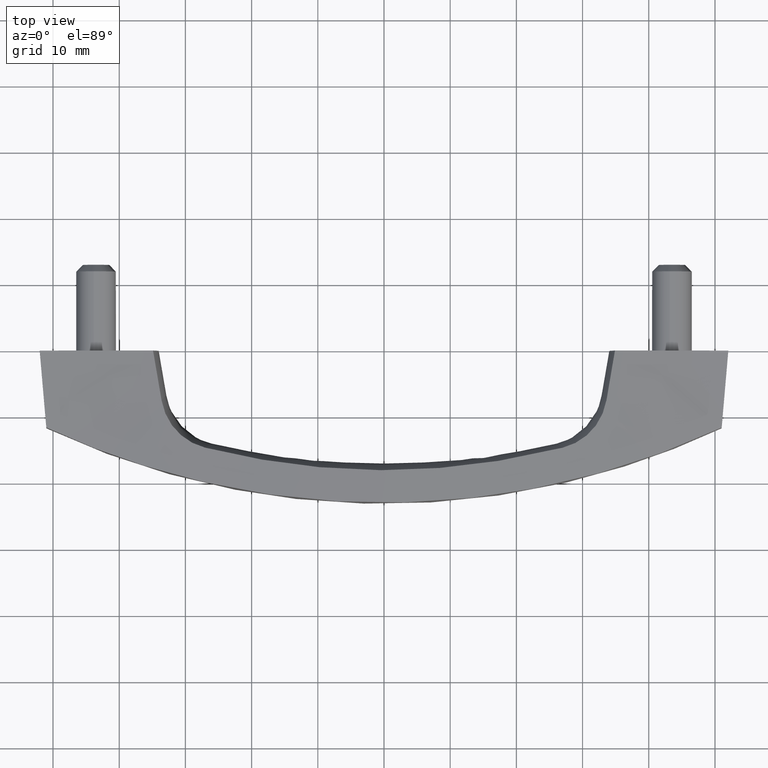
[diagram: clean part render]
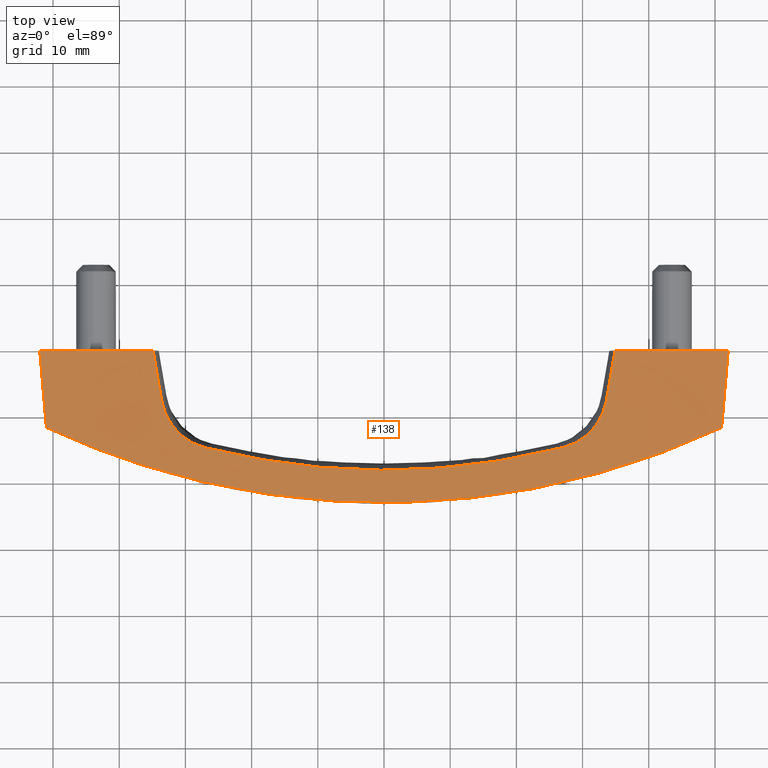
[diagram: same view with one face highlighted and labeled with its STEP entity id]
A machine part, top view. The second image highlights one B-rep face of the part: STEP entity #138.
In plain terms, the highlighted face is a freeform B-spline surface patch.
Its self-contained STEP definition (entity closure, byte-faithful):
#138=ADVANCED_FACE('',(#318),#317,.F.);
#317=( BOUNDED_SURFACE() B_SPLINE_SURFACE( 3,3,((#543,#544,#545,#546,#547,#548,#549,#550,#551,#552,#553,#554,#555),(#556,#557,#558,#559,#560,#561,#562,#563,#564,#565,#566,#567,#568),(#569,#570,#571,#572,#573,#574,#575,#576,#577,#578,#579,#580,#581),(#582,#583,#584,#585,#586,#587,#588,#589,#590,#591,#592,#593,#594)), .UNSPECIFIED.,.F.,.F.,.F.) B_SPLINE_SURFACE_WITH_KNOTS((4,4),(4,1,1,1,1,1,1,1,1,1,4),(0.00000000000E+00,2.39953319339E+01),(0.00000000000E+00,1.25628703422E+01,2.52519634805E+01,3.79410537596E+01,5.06301435874E+01,6.33192332367E+01,7.60083228860E+01,8.86974127137E+01,1.01386502614E+02,1.14075596526E+02,1.26638466869E+02), .UNSPECIFIED. ) GEOMETRIC_REPRESENTATION_ITEM() RATIONAL_B_SPLINE_SURFACE(((1.00000000000E+00,1.00000000000E+00,1.00000000000E+00,1.00000000000E+00,1.00000000000E+00,1.00000000000E+00,1.00000000000E+00,1.00000000000E+00,1.00000000000E+00,1.00000000000E+00,1.00000000000E+00,1.00000000000E+00,1.00000000000E+00),(1.00000000000E+00,1.00000000000E+00,1.00000000000E+00,1.00000000000E+00,1.00000000000E+00,1.00000000000E+00,1.00000000000E+00,1.00000000000E+00,1.00000000000E+00,1.00000000000E+00,1.00000000000E+00,1.00000000000E+00,1.00000000000E+00),(1.00000000000E+00,1.00000000000E+00,1.00000000000E+00,1.00000000000E+00,1.00000000000E+00,1.00000000000E+00,1.00000000000E+00,1.00000000000E+00,1.00000000000E+00,1.00000000000E+00,1.00000000000E+00,1.00000000000E+00,1.00000000000E+00),(1.00000000000E+00,1.00000000000E+00,1.00000000000E+00,1.00000000000E+00,1.00000000000E+00,1.00000000000E+00,1.00000000000E+00,1.00000000000E+00,1.00000000000E+00,1.00000000000E+00,1.00000000000E+00,1.00000000000E+00,1.00000000000E+00))) REPRESENTATION_ITEM('') SURFACE() );
#318=FACE_OUTER_BOUND('',#595,.T.);
#543=CARTESIAN_POINT('',(5.20005000000E+01,4.00000000000E+00,-1.33226800000E-12));
#544=CARTESIAN_POINT('',(4.78137540512E+01,4.08571984430E+00,-7.69734400000E-13));
#545=CARTESIAN_POINT('',(3.93981967048E+01,4.25802078499E+00,3.60983900000E-13));
#546=CARTESIAN_POINT('',(3.01532836675E+01,4.77696724897E+00,-9.71671000000E-14));
#547=CARTESIAN_POINT('',(1.99594477660E+01,4.62158574242E+00,2.61603700000E-14));
#548=CARTESIAN_POINT('',(1.00104569169E+01,4.93668978491E+00,-7.47439100000E-15));
#549=CARTESIAN_POINT('',(2.55012069087E-04,5.03165510749E+00,3.73719500000E-15));
#550=CARTESIAN_POINT('',(-1.00099469651E+01,4.93668978425E+00,-7.47439100000E-15));
#551=CARTESIAN_POINT('',(-1.99589374979E+01,4.62158574818E+00,2.61603700000E-14));
#552=CARTESIAN_POINT('',(-3.01527742982E+01,4.77696723686E+00,-9.71671000000E-14));
#553=CARTESIAN_POINT('',(-3.93976862290E+01,4.25802079788E+00,3.60983900000E-13));
#554=CARTESIAN_POINT('',(-4.78132439789E+01,4.08571984683E+00,-7.69734400000E-13));
#555=CARTESIAN_POINT('',(-5.19999900000E+01,4.00000000000E+00,-1.33226800000E-12));
#556=CARTESIAN_POINT('',(5.13155635707E+01,3.65753178534E+00,7.96170105433E+00));
#557=CARTESIAN_POINT('',(4.74180203723E+01,3.82436100290E+00,7.96170105433E+00));
#558=CARTESIAN_POINT('',(3.95837742303E+01,4.15969561948E+00,7.96170105433E+00));
#559=CARTESIAN_POINT('',(3.01033655615E+01,4.62692824062E+00,7.96170105433E+00));
#560=CARTESIAN_POINT('',(1.99727592591E+01,4.66198085463E+00,7.96170105433E+00));
#561=CARTESIAN_POINT('',(1.00071290437E+01,4.92514832459E+00,7.96170105433E+00));
#562=CARTESIAN_POINT('',(2.55012067391E-04,5.03742583771E+00,7.96170105433E+00));
#563=CARTESIAN_POINT('',(-1.00066190919E+01,4.92514832353E+00,7.96170105433E+00));
#564=CARTESIAN_POINT('',(-1.99722489909E+01,4.66198086152E+00,7.96170105433E+00));
#565=CARTESIAN_POINT('',(-3.01028561925E+01,4.62692822348E+00,7.96170105433E+00));
#566=CARTESIAN_POINT('',(-3.95832637677E+01,4.15969563747E+00,7.96170105433E+00));
#567=CARTESIAN_POINT('',(-4.74175102984E+01,3.82436100546E+00,7.96170105433E+00));
#568=CARTESIAN_POINT('',(-5.13150535707E+01,3.65753178534E+00,7.96170105433E+00));
#569=CARTESIAN_POINT('',(5.06306271414E+01,3.31506357069E+00,1.59234021087E+01));
#570=CARTESIAN_POINT('',(4.70222866933E+01,3.56300216151E+00,1.59234021087E+01));
#571=CARTESIAN_POINT('',(3.97693517558E+01,4.06137045397E+00,1.59234021087E+01));
#572=CARTESIAN_POINT('',(3.00534474556E+01,4.47688923227E+00,1.59234021087E+01));
#573=CARTESIAN_POINT('',(1.99860707523E+01,4.70237596685E+00,1.59234021087E+01));
#574=CARTESIAN_POINT('',(1.00038011705E+01,4.91360686428E+00,1.59234021087E+01));
#575=CARTESIAN_POINT('',(2.55012065695E-04,5.04319656792E+00,1.59234021087E+01));
#576=CARTESIAN_POINT('',(-1.00032912188E+01,4.91360686281E+00,1.59234021087E+01));
#577=CARTESIAN_POINT('',(-1.99855604839E+01,4.70237597486E+00,1.59234021087E+01));
#578=CARTESIAN_POINT('',(-3.00529380868E+01,4.47688921011E+00,1.59234021087E+01));
#579=CARTESIAN_POINT('',(-3.97688413063E+01,4.06137047705E+00,1.59234021087E+01));
#580=CARTESIAN_POINT('',(-4.70217766179E+01,3.56300216410E+00,1.59234021087E+01));
#581=CARTESIAN_POINT('',(-5.06301171414E+01,3.31506357069E+00,1.59234021087E+01));
#582=CARTESIAN_POINT('',(4.99456907121E+01,2.97259535603E+00,2.38851031630E+01));
#583=CARTESIAN_POINT('',(4.66265530143E+01,3.30164332011E+00,2.38851031630E+01));
#584=CARTESIAN_POINT('',(3.99549292812E+01,3.96304528845E+00,2.38851031630E+01));
#585=CARTESIAN_POINT('',(3.00035293496E+01,4.32685022392E+00,2.38851031630E+01));
#586=CARTESIAN_POINT('',(1.99993822454E+01,4.74277107906E+00,2.38851031630E+01));
#587=CARTESIAN_POINT('',(1.00004732973E+01,4.90206540397E+00,2.38851031630E+01));
#588=CARTESIAN_POINT('',(2.55012063999E-04,5.04896729814E+00,2.38851031630E+01));
#589=CARTESIAN_POINT('',(-9.99996334557E+00,4.90206540208E+00,2.38851031630E+01));
#590=CARTESIAN_POINT('',(-1.99988719769E+01,4.74277108819E+00,2.38851031630E+01));
#591=CARTESIAN_POINT('',(-3.00030199812E+01,4.32685019673E+00,2.38851031630E+01));
#592=CARTESIAN_POINT('',(-3.99544188449E+01,3.96304531663E+00,2.38851031630E+01));
#593=CARTESIAN_POINT('',(-4.66260429373E+01,3.30164332274E+00,2.38851031630E+01));
#594=CARTESIAN_POINT('',(-4.99451807121E+01,2.97259535603E+00,2.38851031630E+01));
#595=EDGE_LOOP('',(#756,#757,#758,#759,#760,#761,#762,#763,#764,#765));
#756=ORIENTED_EDGE('',*,*,#840,.F.);
#757=ORIENTED_EDGE('',*,*,#857,.F.);
#758=ORIENTED_EDGE('',*,*,#828,.T.);
#759=ORIENTED_EDGE('',*,*,#843,.F.);
#760=ORIENTED_EDGE('',*,*,#851,.T.);
#761=ORIENTED_EDGE('',*,*,#856,.T.);
#762=ORIENTED_EDGE('',*,*,#854,.T.);
#763=ORIENTED_EDGE('',*,*,#846,.F.);
#764=ORIENTED_EDGE('',*,*,#820,.T.);
#765=ORIENTED_EDGE('',*,*,#826,.T.);
#820=EDGE_CURVE('',#979,#993,#1000,.T.);
#826=EDGE_CURVE('',#993,#1034,#1041,.T.);
#828=EDGE_CURVE('',#1055,#1047,#1056,.T.);
#840=EDGE_CURVE('',#1138,#1034,#1139,.T.);
#843=EDGE_CURVE('',#1158,#1047,#1159,.T.);
#846=EDGE_CURVE('',#979,#1178,#1179,.T.);
#851=EDGE_CURVE('',#1158,#1205,#1212,.T.);
#854=EDGE_CURVE('',#1218,#1178,#1232,.T.);
#856=EDGE_CURVE('',#1205,#1218,#1244,.T.);
#857=EDGE_CURVE('',#1055,#1138,#1250,.T.);
#979=VERTEX_POINT('',#1360);
#993=VERTEX_POINT('',#1370);
#1000=(BOUNDED_CURVE() B_SPLINE_CURVE(3,(#1374,#1375,#1376,#1377,#1378),.UNSPECIFIED.,.F.,.F.) B_SPLINE_CURVE_WITH_KNOTS((4,1,4),(8.51182230981E-01,9.00797359185E-01,1.00000000000E+00),.UNSPECIFIED.) CURVE() GEOMETRIC_REPRESENTATION_ITEM() RATIONAL_B_SPLINE_CURVE((1.00000000000E+00,1.00000000000E+00,1.00000000000E+00,1.00000000000E+00,1.00000000000E+00)) REPRESENTATION_ITEM('') );
#1034=VERTEX_POINT('',#1398);
#1041=LINE('',#1402,#1403);
#1047=VERTEX_POINT('',#1405);
#1055=VERTEX_POINT('',#1410);
#1056=(BOUNDED_CURVE() B_SPLINE_CURVE(3,(#1411,#1412,#1413,#1414,#1415),.UNSPECIFIED.,.F.,.F.) B_SPLINE_CURVE_WITH_KNOTS((4,1,4),(0.00000000000E+00,9.92026408153E-02,1.48817765787E-01),.UNSPECIFIED.) CURVE() GEOMETRIC_REPRESENTATION_ITEM() RATIONAL_B_SPLINE_CURVE((1.00000000000E+00,1.00000000000E+00,1.00000000000E+00,1.00000000000E+00,1.00000000000E+00)) REPRESENTATION_ITEM('') );
#1138=VERTEX_POINT('',#1470);
#1139=(BOUNDED_CURVE() B_SPLINE_CURVE(3,(#1471,#1472,#1473,#1474,#1475,#1476,#1477,#1478,#1479,#1480,#1481,#1482,#1483,#1484,#1485,#1486,#1487,#1488,#1489,#1490,#1491,#1492,#1493,#1494,#1495,#1496,#1497,#1498,#1499,#1500,#1501,#1502,#1503,#1504,#1505,#1506,#1507,#1508,#1509,#1510,#1511,#1512,#1513,#1514,#1515,#1516,#1517,#1518,#1519,#1520,#1521,#1522,#1523,#1524,#1525,#1526,#1527,#1528,#1529,#1530,#1531,#1532,#1533,#1534,#1535,#1536),.UNSPECIFIED.,.F.,.F.) B_SPLINE_CURVE_WITH_KNOTS((4,2,2,2,2,2,2,2,2,2,2,2,2,2,2,2,2,2,2,2,2,2,2,2,2,2,2,2,2,2,2,2,4),(0.00000000000E+00,3.12500000000E-02,6.25000000000E-02,9.37500000000E-02,1.25000000000E-01,1.56250000000E-01,1.87500000000E-01,2.18750000000E-01,2.50000000000E-01,2.81250000000E-01,3.12500000000E-01,3.43750000000E-01,3.75000000000E-01,3.90625000000E-01,4.06250000000E-01,4.37500000000E-01,5.00000000000E-01,5.62500000000E-01,5.93750000000E-01,6.25000000000E-01,6.56250000000E-01,6.87500000000E-01,7.18750000000E-01,7.50000000000E-01,7.65625000000E-01,7.81250000000E-01,8.12500000000E-01,8.43750000000E-01,8.75000000000E-01,9.06250000000E-01,9.37500000000E-01,9.68750000000E-01,1.00000000000E+00),.UNSPECIFIED.) CURVE() GEOMETRIC_REPRESENTATION_ITEM() RATIONAL_B_SPLINE_CURVE((1.00000000000E+00,1.00000000000E+00,1.00000000000E+00,1.00000000000E+00,1.00000000000E+00,1.00000000000E+00,1.00000000000E+00,1.00000000000E+00,1.00000000000E+00,1.00000000000E+00,1.00000000000E+00,1.00000000000E+00,1.00000000000E+00,1.00000000000E+00,1.00000000000E+00,1.00000000000E+00,1.00000000000E+00,1.00000000000E+00,1.00000000000E+00,1.00000000000E+00,1.00000000000E+00,1.00000000000E+00,1.00000000000E+00,1.00000000000E+00,1.00000000000E+00,1.00000000000E+00,1.00000000000E+00,1.00000000000E+00,1.00000000000E+00,1.00000000000E+00,1.00000000000E+00,1.00000000000E+00,1.00000000000E+00,1.00000000000E+00,1.00000000000E+00,1.00000000000E+00,1.00000000000E+00,1.00000000000E+00,1.00000000000E+00,1.00000000000E+00,1.00000000000E+00,1.00000000000E+00,1.00000000000E+00,1.00000000000E+00,1.00000000000E+00,1.00000000000E+00,1.00000000000E+00,1.00000000000E+00,1.00000000000E+00,1.00000000000E+00,1.00000000000E+00,1.00000000000E+00,1.00000000000E+00,1.00000000000E+00,1.00000000000E+00,1.00000000000E+00,1.00000000000E+00,1.00000000000E+00,1.00000000000E+00,1.00000000000E+00,1.00000000000E+00,1.00000000000E+00,1.00000000000E+00,1.00000000000E+00,1.00000000000E+00,1.00000000000E+00)) REPRESENTATION_ITEM('') );
#1158=VERTEX_POINT('',#1607);
#1159=(BOUNDED_CURVE() B_SPLINE_CURVE(3,(#1608,#1609,#1610,#1611),.UNSPECIFIED.,.F.,.F.) B_SPLINE_CURVE_WITH_KNOTS((4,4),(3.12919295445E-04,7.93070046308E-03),.UNSPECIFIED.) CURVE() GEOMETRIC_REPRESENTATION_ITEM() RATIONAL_B_SPLINE_CURVE((1.00000000000E+00,1.00000000000E+00,1.00000000000E+00,1.00000000000E+00)) REPRESENTATION_ITEM('') );
#1178=VERTEX_POINT('',#1627);
#1179=(BOUNDED_CURVE() B_SPLINE_CURVE(3,(#1628,#1629,#1630,#1631),.UNSPECIFIED.,.F.,.F.) B_SPLINE_CURVE_WITH_KNOTS((4,4),(0.00000000000E+00,7.61717862308E-03),.UNSPECIFIED.) CURVE() GEOMETRIC_REPRESENTATION_ITEM() RATIONAL_B_SPLINE_CURVE((1.00000000000E+00,1.00000000000E+00,1.00000000000E+00,1.00000000000E+00)) REPRESENTATION_ITEM('') );
#1205=VERTEX_POINT('',#1678);
#1212=(BOUNDED_CURVE() B_SPLINE_CURVE(3,(#1699,#1700,#1701,#1702,#1703,#1704,#1705,#1706,#1707,#1708,#1709,#1710,#1711,#1712,#1713,#1714,#1715,#1716,#1717,#1718,#1719,#1720,#1721,#1722,#1723,#1724,#1725,#1726),.UNSPECIFIED.,.F.,.F.) B_SPLINE_CURVE_WITH_KNOTS((4,2,2,2,2,2,2,2,2,2,2,2,2,4),(1.92430852220E-05,1.25000000000E-01,2.50000000000E-01,2.81250000000E-01,3.12500000000E-01,3.75000000000E-01,5.00000000000E-01,5.62500000000E-01,5.93750000000E-01,6.25000000000E-01,7.50000000000E-01,8.75000000000E-01,9.37500000000E-01,9.99986105413E-01),.UNSPECIFIED.) CURVE() GEOMETRIC_REPRESENTATION_ITEM() RATIONAL_B_SPLINE_CURVE((1.00000000000E+00,1.00000000000E+00,1.00000000000E+00,1.00000000000E+00,1.00000000000E+00,1.00000000000E+00,1.00000000000E+00,1.00000000000E+00,1.00000000000E+00,1.00000000000E+00,1.00000000000E+00,1.00000000000E+00,1.00000000000E+00,1.00000000000E+00,1.00000000000E+00,1.00000000000E+00,1.00000000000E+00,1.00000000000E+00,1.00000000000E+00,1.00000000000E+00,1.00000000000E+00,1.00000000000E+00,1.00000000000E+00,1.00000000000E+00,1.00000000000E+00,1.00000000000E+00,1.00000000000E+00,1.00000000000E+00)) REPRESENTATION_ITEM('') );
#1218=VERTEX_POINT('',#1727);
#1232=(BOUNDED_CURVE() B_SPLINE_CURVE(3,(#1777,#1778,#1779,#1780,#1781,#1782,#1783,#1784,#1785,#1786,#1787,#1788,#1789,#1790,#1791,#1792,#1793,#1794,#1795,#1796,#1797,#1798,#1799,#1800,#1801,#1802,#1803,#1804,#1805,#1806),.UNSPECIFIED.,.F.,.F.) B_SPLINE_CURVE_WITH_KNOTS((4,2,2,2,2,2,2,2,2,2,2,2,2,2,4),(1.26367478140E-05,1.25000000000E-01,2.50000000000E-01,2.81250000000E-01,3.12500000000E-01,3.75000000000E-01,5.00000000000E-01,5.62500000000E-01,5.93750000000E-01,6.25000000000E-01,7.50000000000E-01,8.12500000000E-01,8.43750000000E-01,8.75000000000E-01,9.99983140215E-01),.UNSPECIFIED.) CURVE() GEOMETRIC_REPRESENTATION_ITEM() RATIONAL_B_SPLINE_CURVE((1.00000000000E+00,1.00000000000E+00,1.00000000000E+00,1.00000000000E+00,1.00000000000E+00,1.00000000000E+00,1.00000000000E+00,1.00000000000E+00,1.00000000000E+00,1.00000000000E+00,1.00000000000E+00,1.00000000000E+00,1.00000000000E+00,1.00000000000E+00,1.00000000000E+00,1.00000000000E+00,1.00000000000E+00,1.00000000000E+00,1.00000000000E+00,1.00000000000E+00,1.00000000000E+00,1.00000000000E+00,1.00000000000E+00,1.00000000000E+00,1.00000000000E+00,1.00000000000E+00,1.00000000000E+00,1.00000000000E+00,1.00000000000E+00,1.00000000000E+00)) REPRESENTATION_ITEM('') );
#1244=(BOUNDED_CURVE() B_SPLINE_CURVE(3,(#1842,#1843,#1844,#1845,#1846,#1847,#1848,#1849,#1850,#1851,#1852,#1853,#1854,#1855,#1856,#1857,#1858,#1859,#1860,#1861,#1862,#1863,#1864,#1865,#1866,#1867,#1868,#1869,#1870,#1871,#1872,#1873,#1874,#1875,#1876),.UNSPECIFIED.,.F.,.F.) B_SPLINE_CURVE_WITH_KNOTS((4,2,2,2,2,2,2,1,2,2,2,2,2,2,2,2,2,4),(7.89933092900E-06,6.25000000000E-02,1.25000000000E-01,1.87500000000E-01,2.50000000000E-01,3.12500000000E-01,3.75000000000E-01,4.06250000000E-01,4.21875000000E-01,4.37500000000E-01,5.00000000000E-01,6.25000000000E-01,6.87500000000E-01,7.50000000000E-01,8.12500000000E-01,8.75000000000E-01,9.37500000000E-01,9.99992811110E-01),.UNSPECIFIED.) CURVE() GEOMETRIC_REPRESENTATION_ITEM() RATIONAL_B_SPLINE_CURVE((1.00000000000E+00,1.00000000000E+00,1.00000000000E+00,1.00000000000E+00,1.00000000000E+00,1.00000000000E+00,1.00000000000E+00,1.00000000000E+00,1.00000000000E+00,1.00000000000E+00,1.00000000000E+00,1.00000000000E+00,1.00000000000E+00,1.00000000000E+00,1.00000000000E+00,1.00000000000E+00,1.00000000000E+00,1.00000000000E+00,1.00000000000E+00,1.00000000000E+00,1.00000000000E+00,1.00000000000E+00,1.00000000000E+00,1.00000000000E+00,1.00000000000E+00,1.00000000000E+00,1.00000000000E+00,1.00000000000E+00,1.00000000000E+00,1.00000000000E+00,1.00000000000E+00,1.00000000000E+00,1.00000000000E+00,1.00000000000E+00,1.00000000000E+00)) REPRESENTATION_ITEM('') );
#1250=LINE('',#1877,#1878);
#1360=CARTESIAN_POINT('',(-3.48903901517E+01,4.50605642015E+00,5.73941500000E-11));
#1370=CARTESIAN_POINT('',(-5.19999900000E+01,4.00000000000E+00,-8.88178400000E-13));
#1374=CARTESIAN_POINT('',(-3.48903901517E+01,4.50605642015E+00,5.73941500000E-11));
#1375=CARTESIAN_POINT('',(-3.65120586636E+01,4.43931217298E+00,1.18376400000E-13));
#1376=CARTESIAN_POINT('',(-4.15325422034E+01,4.21431154822E+00,7.41436800000E-14));
#1377=CARTESIAN_POINT('',(-4.78132439789E+01,4.08571984683E+00,-7.69734400000E-13));
#1378=CARTESIAN_POINT('',(-5.19999900000E+01,4.00000000000E+00,-8.88178400000E-13));
#1398=CARTESIAN_POINT('',(-5.10000252651E+01,3.50001763252E+00,1.16235900791E+01));
#1402=CARTESIAN_POINT('',(-5.19999900000E+01,4.00000000000E+00,-8.88178400000E-13));
#1403=VECTOR('',#1404,1.16772324703E+01);
#1404=DIRECTION('',(8.56337096551E-02,-4.28168548282E-02,9.95406241046E-01));
#1405=CARTESIAN_POINT('',(3.48909001505E+01,4.50605641706E+00,1.00049200000E-13));
#1410=CARTESIAN_POINT('',(5.20005000000E+01,4.00000000000E+00,-8.88178400000E-13));
#1411=CARTESIAN_POINT('',(5.20005000000E+01,4.00000000000E+00,-8.88178400000E-13));
#1412=CARTESIAN_POINT('',(4.78137540512E+01,4.08571984430E+00,-7.69734400000E-13));
#1413=CARTESIAN_POINT('',(4.15330525206E+01,4.21431153911E+00,7.41436700000E-14));
#1414=CARTESIAN_POINT('',(3.65125686827E+01,4.43931217016E+00,1.18376400000E-13));
#1415=CARTESIAN_POINT('',(3.48909001505E+01,4.50605641706E+00,1.00049200000E-13));
#1470=CARTESIAN_POINT('',(5.10005567320E+01,3.50002836602E+00,1.16233405467E+01));
#1471=CARTESIAN_POINT('',(5.10005567320E+01,3.50002836602E+00,1.16233405467E+01));
#1472=CARTESIAN_POINT('',(4.99990027260E+01,3.53191644947E+00,1.20935893878E+01));
#1473=CARTESIAN_POINT('',(4.89934658437E+01,3.56917836643E+00,1.25488062897E+01));
#1474=CARTESIAN_POINT('',(4.69744928799E+01,3.65293437837E+00,1.34296082497E+01));
#1475=CARTESIAN_POINT('',(4.59610572541E+01,3.69944199791E+00,1.38551932338E+01));
#1476=CARTESIAN_POINT('',(4.39262770585E+01,3.79847733191E+00,1.46771037058E+01));
#1477=CARTESIAN_POINT('',(4.29049330410E+01,3.85102068843E+00,1.50734291993E+01));
#1478=CARTESIAN_POINT('',(4.08542340362E+01,3.95675366119E+00,1.58371347740E+01));
#1479=CARTESIAN_POINT('',(3.98248733576E+01,4.00976409612E+00,1.62045170789E+01));
#1480=CARTESIAN_POINT('',(3.77579620699E+01,4.10943189535E+00,1.69105793602E+01));
#1481=CARTESIAN_POINT('',(3.67204138399E+01,4.15617011627E+00,1.72492576519E+01));
#1482=CARTESIAN_POINT('',(3.46371024728E+01,4.24178966088E+00,1.78980126803E+01));
#1483=CARTESIAN_POINT('',(3.35913397397E+01,4.28068863067E+00,1.82080886338E+01));
#1484=CARTESIAN_POINT('',(3.14916798309E+01,4.35291588182E+00,1.87996388891E+01));
#1485=CARTESIAN_POINT('',(3.04377858166E+01,4.38634429937E+00,1.90811118784E+01));
#1486=CARTESIAN_POINT('',(2.83220212118E+01,4.45271407633E+00,1.96153801273E+01));
#1487=CARTESIAN_POINT('',(2.72601484531E+01,4.48558384455E+00,1.98681766565E+01));
#1488=CARTESIAN_POINT('',(2.51284134012E+01,4.55117308182E+00,2.03450025783E+01));
#1489=CARTESIAN_POINT('',(2.40585506426E+01,4.58387546456E+00,2.05690324615E+01));
#1490=CARTESIAN_POINT('',(2.19107366775E+01,4.64744466157E+00,2.09881824868E+01));
#1491=CARTESIAN_POINT('',(2.08327847052E+01,4.67828594326E+00,2.11833031089E+01));
#1492=CARTESIAN_POINT('',(1.86686189780E+01,4.73485186311E+00,2.15444262994E+01));
#1493=CARTESIAN_POINT('',(1.75824049788E+01,4.76057277979E+00,2.17104284596E+01));
#1494=CARTESIAN_POINT('',(1.54016410278E+01,4.80719564424E+00,2.20130097326E+01));
#1495=CARTESIAN_POINT('',(1.43070914533E+01,4.82810919888E+00,2.21495887323E+01));
#1496=CARTESIAN_POINT('',(1.26589770653E+01,4.85703079192E+00,2.23321049657E+01));
#1497=CARTESIAN_POINT('',(1.21081627833E+01,4.86627787438E+00,2.23892524576E+01));
#1498=CARTESIAN_POINT('',(1.10075060800E+01,4.88420114409E+00,2.24957576798E+01));
#1499=CARTESIAN_POINT('',(1.04574356014E+01,4.89288345360E+00,2.25451464881E+01));
#1500=CARTESIAN_POINT('',(8.80798813229E+00,4.91856349385E+00,2.26817971932E+01));
#1501=CARTESIAN_POINT('',(7.70937550200E+00,4.93514020660E+00,2.27575455157E+01));
#1502=CARTESIAN_POINT('',(4.41660481639E+00,4.97878234506E+00,2.29392473044E+01));
#1503=CARTESIAN_POINT('',(2.22551180931E+00,4.99975538627E+00,2.29996909166E+01));
#1504=CARTESIAN_POINT('',(-2.14837562156E+00,5.00024036304E+00,2.30010966875E+01));
#1505=CARTESIAN_POINT('',(-4.33116922158E+00,4.97965187488E+00,2.29420613971E+01));
#1506=CARTESIAN_POINT('',(-7.59936365699E+00,4.93671086174E+00,2.27645013133E+01));
#1507=CARTESIAN_POINT('',(-8.68776181648E+00,4.92037985997E+00,2.26904712650E+01));
#1508=CARTESIAN_POINT('',(-1.08625867703E+01,4.88660989978E+00,2.25127197560E+01));
#1509=CARTESIAN_POINT('',(-1.19490147868E+01,4.86929678193E+00,2.24089979754E+01));
#1510=CARTESIAN_POINT('',(-1.41198749924E+01,4.83154204524E+00,2.21717948691E+01));
#1511=CARTESIAN_POINT('',(-1.52043069387E+01,4.81107521936E+00,2.20383136378E+01));
#1512=CARTESIAN_POINT('',(-1.73711497892E+01,4.76535030234E+00,2.17414585590E+01));
#1513=CARTESIAN_POINT('',(-1.84535605687E+01,4.74007870947E+00,2.15780848447E+01));
#1514=CARTESIAN_POINT('',(-2.06163427790E+01,4.68424190892E+00,2.12212427107E+01));
#1515=CARTESIAN_POINT('',(-2.16967134742E+01,4.65359970753E+00,2.10277746720E+01));
#1516=CARTESIAN_POINT('',(-2.38554265403E+01,4.59000738034E+00,2.06104640768E+01));
#1517=CARTESIAN_POINT('',(-2.49337694029E+01,4.55710722610E+00,2.03866214891E+01));
#1518=CARTESIAN_POINT('',(-2.65497588256E+01,4.50743901572E+00,2.00278103334E+01));
#1519=CARTESIAN_POINT('',(-2.70881676456E+01,4.49081604996E+00,1.99043648207E+01));
#1520=CARTESIAN_POINT('',(-2.81644735397E+01,4.45746557062E+00,1.96497388212E+01));
#1521=CARTESIAN_POINT('',(-2.87018916843E+01,4.44075347012E+00,1.95186678536E+01));
#1522=CARTESIAN_POINT('',(-3.03096344803E+01,4.39039057112E+00,1.91147719663E+01));
#1523=CARTESIAN_POINT('',(-3.13763943509E+01,4.35667160309E+00,1.88310426814E+01));
#1524=CARTESIAN_POINT('',(-3.34996547581E+01,4.28399551326E+00,1.82348958662E+01));
#1525=CARTESIAN_POINT('',(-3.45561504674E+01,4.24490795532E+00,1.79224801160E+01));
#1526=CARTESIAN_POINT('',(-3.66588306893E+01,4.15885078737E+00,1.72691278559E+01));
#1527=CARTESIAN_POINT('',(-3.77050148011E+01,4.11186444993E+00,1.69281921977E+01));
#1528=CARTESIAN_POINT('',(-3.97871590761E+01,4.01164422825E+00,1.62178542588E+01));
#1529=CARTESIAN_POINT('',(-4.08231164696E+01,3.95832816022E+00,1.58484538765E+01));
#1530=CARTESIAN_POINT('',(-4.28850502605E+01,3.85201484689E+00,1.50810966706E+01));
#1531=CARTESIAN_POINT('',(-4.39110336673E+01,3.79920902241E+00,1.46831370198E+01));
#1532=CARTESIAN_POINT('',(-4.59532036171E+01,3.69977287070E+00,1.38584881276E+01));
#1533=CARTESIAN_POINT('',(-4.69693894125E+01,3.65312529328E+00,1.34317988098E+01));
#1534=CARTESIAN_POINT('',(-4.89920212123E+01,3.56919965445E+00,1.25494723028E+01));
#1535=CARTESIAN_POINT('',(-4.99984666073E+01,3.53190692334E+00,1.20938351236E+01));
#1536=CARTESIAN_POINT('',(-5.10000252651E+01,3.50001763252E+00,1.16235900791E+01));
#1607=CARTESIAN_POINT('',(3.36079919887E+01,4.44234619461E+00,7.50870683689E+00));
#1608=CARTESIAN_POINT('',(3.36079919887E+01,4.44234619461E+00,7.50870683689E+00));
#1609=CARTESIAN_POINT('',(3.40356480483E+01,4.46381134457E+00,5.00580992580E+00));
#1610=CARTESIAN_POINT('',(3.44632329508E+01,4.48491619597E+00,2.50289777037E+00));
#1611=CARTESIAN_POINT('',(3.48909001505E+01,4.50605641706E+00,1.00049200000E-13));
#1627=CARTESIAN_POINT('',(-3.36073313691E+01,4.44236175174E+00,7.50806990442E+00));
#1628=CARTESIAN_POINT('',(-3.48903901517E+01,4.50605642015E+00,5.73941500000E-11));
#1629=CARTESIAN_POINT('',(-3.44626727461E+01,4.48492135829E+00,2.50268545954E+00));
#1630=CARTESIAN_POINT('',(-3.40350376302E+01,4.46382167452E+00,5.00538530287E+00));
#1631=CARTESIAN_POINT('',(-3.36073313691E+01,4.44236175174E+00,7.50806990442E+00));
#1678=CARTESIAN_POINT('',(2.70095754065E+01,4.54628775697E+00,1.46761128301E+01));
#1699=CARTESIAN_POINT('',(3.36079919887E+01,4.44234619461E+00,7.50870683689E+00));
#1700=CARTESIAN_POINT('',(3.35348692305E+01,4.43868899322E+00,7.93582137752E+00));
#1701=CARTESIAN_POINT('',(3.34331150637E+01,4.43630276945E+00,8.35298417937E+00));
#1702=CARTESIAN_POINT('',(3.31734746612E+01,4.43390456890E+00,9.16786877809E+00));
#1703=CARTESIAN_POINT('',(3.30155823151E+01,4.43389322095E+00,9.56558845175E+00));
#1704=CARTESIAN_POINT('',(3.27816833203E+01,4.43530145786E+00,1.00500392721E+01));
#1705=CARTESIAN_POINT('',(3.27330679955E+01,4.43565438892E+00,1.01462914219E+01));
#1706=CARTESIAN_POINT('',(3.26320928280E+01,4.43650194326E+00,1.03374941490E+01));
#1707=CARTESIAN_POINT('',(3.25796591584E+01,4.43699752290E+00,1.04325581896E+01));
#1708=CARTESIAN_POINT('',(3.24179618443E+01,4.43868071794E+00,1.07134849552E+01));
#1709=CARTESIAN_POINT('',(3.23039573937E+01,4.44006691913E+00,1.08957933304E+01));
#1710=CARTESIAN_POINT('',(3.19436328236E+01,4.44495715054E+00,1.14280372103E+01));
#1711=CARTESIAN_POINT('',(3.16790822541E+01,4.44918927959E+00,1.17633562302E+01));
#1712=CARTESIAN_POINT('',(3.12454531306E+01,4.45681876780E+00,1.22368296884E+01));
#1713=CARTESIAN_POINT('',(3.10947559879E+01,4.45957636493E+00,1.23897204473E+01));
#1714=CARTESIAN_POINT('',(3.08592512129E+01,4.46402055079E+00,1.26114735580E+01));
#1715=CARTESIAN_POINT('',(3.07791049523E+01,4.46555459897E+00,1.26841845047E+01));
#1716=CARTESIAN_POINT('',(3.06158841168E+01,4.46871833577E+00,1.28267855631E+01));
#1717=CARTESIAN_POINT('',(3.05331989887E+01,4.47034043323E+00,1.28963399991E+01));
#1718=CARTESIAN_POINT('',(3.01144945063E+01,4.47864076182E+00,1.32355358536E+01));
#1719=CARTESIAN_POINT('',(2.97627098985E+01,4.48587285153E+00,1.34795645338E+01));
#1720=CARTESIAN_POINT('',(2.90267121357E+01,4.50141219357E+00,1.39149396135E+01));
#1721=CARTESIAN_POINT('',(2.86425032025E+01,4.50973147823E+00,1.41062924575E+01));
#1722=CARTESIAN_POINT('',(2.80413805596E+01,4.52302040465E+00,1.43530179241E+01));
#1723=CARTESIAN_POINT('',(2.78381933183E+01,4.52755543948E+00,1.44279532690E+01));
#1724=CARTESIAN_POINT('',(2.74274428463E+01,4.53679391707E+00,1.45630111874E+01));
#1725=CARTESIAN_POINT('',(2.72197004320E+01,4.54150130898E+00,1.46232111167E+01));
#1726=CARTESIAN_POINT('',(2.70095754065E+01,4.54628775697E+00,1.46761128301E+01));
#1727=CARTESIAN_POINT('',(-2.70083607157E+01,4.54630653269E+00,1.46760137016E+01));
#1777=CARTESIAN_POINT('',(-2.70083607157E+01,4.54630653269E+00,1.46760137016E+01));
#1778=CARTESIAN_POINT('',(-2.74285275270E+01,4.53673603411E+00,1.45702253831E+01));
#1779=CARTESIAN_POINT('',(-2.78363089866E+01,4.52754918944E+00,1.44361049610E+01));
#1780=CARTESIAN_POINT('',(-2.86276289216E+01,4.51005140466E+00,1.41122929757E+01));
#1781=CARTESIAN_POINT('',(-2.90111654068E+01,4.50173970450E+00,1.39225969010E+01));
#1782=CARTESIAN_POINT('',(-2.94747836395E+01,4.49194602072E+00,1.36493227621E+01));
#1783=CARTESIAN_POINT('',(-2.95667134210E+01,4.49001704847E+00,1.35928516693E+01));
#1784=CARTESIAN_POINT('',(-2.97489540268E+01,4.48621983438E+00,1.34762055093E+01));
#1785=CARTESIAN_POINT('',(-2.98392243819E+01,4.48435250672E+00,1.34160434852E+01));
#1786=CARTESIAN_POINT('',(-3.01053239271E+01,4.47888876636E+00,1.32315043822E+01));
#1787=CARTESIAN_POINT('',(-3.02772189137E+01,4.47541305016E+00,1.31025954377E+01));
#1788=CARTESIAN_POINT('',(-3.07767105267E+01,4.46550756899E+00,1.26985621764E+01));
#1789=CARTESIAN_POINT('',(-3.10881834692E+01,4.45959603380E+00,1.24062059067E+01));
#1790=CARTESIAN_POINT('',(-3.15230799628E+01,4.45192839271E+00,1.19331343106E+01));
#1791=CARTESIAN_POINT('',(-3.16626426110E+01,4.44957345308E+00,1.17696690148E+01));
#1792=CARTESIAN_POINT('',(-3.18637143341E+01,4.44637232782E+00,1.15156289146E+01));
#1793=CARTESIAN_POINT('',(-3.19294882518E+01,4.44535870931E+00,1.14292906375E+01));
#1794=CARTESIAN_POINT('',(-3.20573711310E+01,4.44346045069E+00,1.12548180667E+01));
#1795=CARTESIAN_POINT('',(-3.21195217460E+01,4.44257498237E+00,1.11666470874E+01));
#1796=CARTESIAN_POINT('',(-3.24214859316E+01,4.43847020008E+00,1.07212049204E+01));
#1797=CARTESIAN_POINT('',(-3.26350616714E+01,4.43621527219E+00,1.03502391618E+01));
#1798=CARTESIAN_POINT('',(-3.29149964388E+01,4.43449961214E+00,9.77268835874E+00));
#1799=CARTESIAN_POINT('',(-3.30015444628E+01,4.43420615852E+00,9.57664112788E+00));
#1800=CARTESIAN_POINT('',(-3.31211905417E+01,4.43420478813E+00,9.27725877866E+00));
#1801=CARTESIAN_POINT('',(-3.31593750128E+01,4.43427750607E+00,9.17657859638E+00));
#1802=CARTESIAN_POINT('',(-3.32323244286E+01,4.43457331989E+00,8.97343334356E+00));
#1803=CARTESIAN_POINT('',(-3.32671317402E+01,4.43479684653E+00,8.87083263470E+00));
#1804=CARTESIAN_POINT('',(-3.34319588853E+01,4.43629579476E+00,8.35511883411E+00));
#1805=CARTESIAN_POINT('',(-3.35341911459E+01,4.43870491047E+00,7.93520493673E+00));
#1806=CARTESIAN_POINT('',(-3.36073313691E+01,4.44236175174E+00,7.50806990442E+00));
#1842=CARTESIAN_POINT('',(2.70095754065E+01,4.54628775697E+00,1.46761128301E+01));
#1843=CARTESIAN_POINT('',(2.59010449043E+01,4.57154040428E+00,1.49548448979E+01));
#1844=CARTESIAN_POINT('',(2.47899673729E+01,4.59560023889E+00,1.52162473116E+01));
#1845=CARTESIAN_POINT('',(2.25628144891E+01,4.64393163799E+00,1.57057155903E+01));
#1846=CARTESIAN_POINT('',(2.14467367206E+01,4.66817604636E+00,1.59337683779E+01));
#1847=CARTESIAN_POINT('',(1.92097888436E+01,4.71736521059E+00,1.63568873060E+01));
#1848=CARTESIAN_POINT('',(1.80889179291E+01,4.74229256078E+00,1.65519501611E+01));
#1849=CARTESIAN_POINT('',(1.58421994151E+01,4.79040722716E+00,1.69081388996E+01));
#1850=CARTESIAN_POINT('',(1.47163516374E+01,4.81359576515E+00,1.70692634019E+01));
#1851=CARTESIAN_POINT('',(1.24595868255E+01,4.85721093193E+00,1.73570719274E+01));
#1852=CARTESIAN_POINT('',(1.13286709259E+01,4.87765380440E+00,1.74837616415E+01));
#1853=CARTESIAN_POINT('',(9.06174716389E+00,4.91579096111E+00,1.77025430083E+01));
#1854=CARTESIAN_POINT('',(7.92574907183E+00,4.93359779118E+00,1.77946871966E+01));
#1855=CARTESIAN_POINT('',(6.21776652348E+00,4.95660397571E+00,1.79060245257E+01));
#1856=CARTESIAN_POINT('',(5.36277807208E+00,4.96717443677E+00,1.79549686452E+01));
#1857=CARTESIAN_POINT('',(4.50625397619E+00,4.97596396693E+00,1.79936015254E+01));
#1858=CARTESIAN_POINT('',(3.93489189944E+00,4.98138337702E+00,1.80170384757E+01));
#1859=CARTESIAN_POINT('',(3.64893484568E+00,4.98387379837E+00,1.80276010244E+01));
#1860=CARTESIAN_POINT('',(2.21975093924E+00,4.99510234387E+00,1.80745039780E+01));
#1861=CARTESIAN_POINT('',(1.07857212354E+00,5.00016758843E+00,1.80931239872E+01));
#1862=CARTESIAN_POINT('',(-2.33826489718E+00,4.99961270535E+00,1.80910522075E+01));
#1863=CARTESIAN_POINT('',(-4.60724851834E+00,4.97852439582E+00,1.80126145065E+01));
#1864=CARTESIAN_POINT('',(-7.99867039794E+00,4.93248553404E+00,1.77889287336E+01));
#1865=CARTESIAN_POINT('',(-9.12713343933E+00,4.91472937730E+00,1.76966785688E+01));
#1866=CARTESIAN_POINT('',(-1.13802054140E+01,4.87672972529E+00,1.74780019286E+01));
#1867=CARTESIAN_POINT('',(-1.25048059850E+01,4.85635974375E+00,1.73515169335E+01));
#1868=CARTESIAN_POINT('',(-1.47501438210E+01,4.81290080359E+00,1.70643182123E+01));
#1869=CARTESIAN_POINT('',(-1.58708802102E+01,4.78979567557E+00,1.69035987343E+01));
#1870=CARTESIAN_POINT('',(-1.81085469242E+01,4.74184991399E+00,1.65483164260E+01));
#1871=CARTESIAN_POINT('',(-1.92254774224E+01,4.71700881432E+00,1.63537552081E+01));
#1872=CARTESIAN_POINT('',(-2.14556610963E+01,4.66797228293E+00,1.59316343275E+01));
#1873=CARTESIAN_POINT('',(-2.25689146986E+01,4.64379041877E+00,1.57040767316E+01));
#1874=CARTESIAN_POINT('',(-2.47915530814E+01,4.59555707996E+00,1.52154882237E+01));
#1875=CARTESIAN_POINT('',(-2.59009397359E+01,4.57153320769E+00,1.49544705225E+01));
#1876=CARTESIAN_POINT('',(-2.70083607157E+01,4.54630653269E+00,1.46760137016E+01));
#1877=CARTESIAN_POINT('',(5.20005000000E+01,4.00000000000E+00,-8.88178400000E-13));
#1878=VECTOR('',#1879,1.16769817864E+01);
#1879=DIRECTION('',(-8.56337096564E-02,-4.28168548282E-02,9.95406241046E-01));